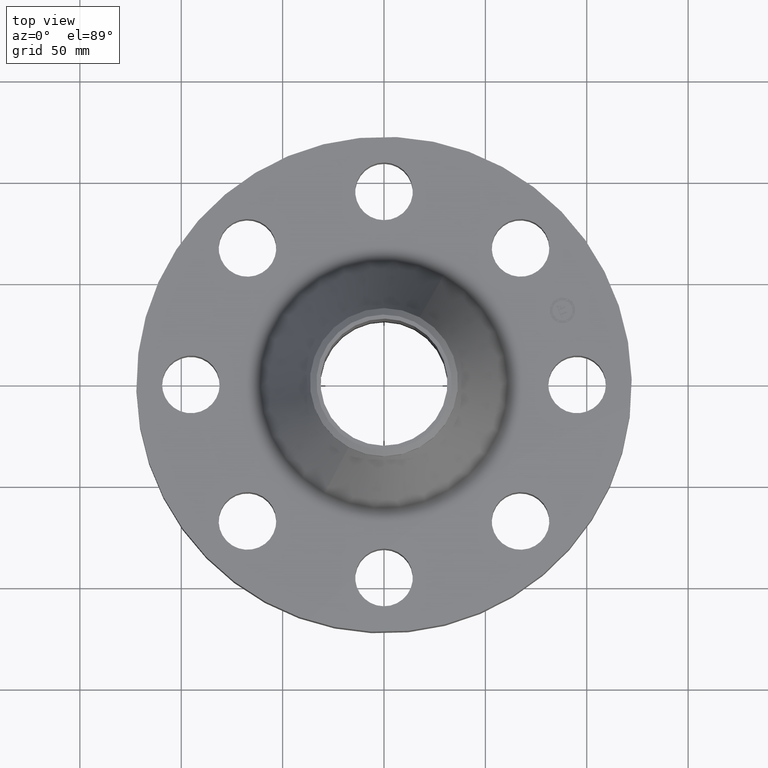
[diagram: clean part render]
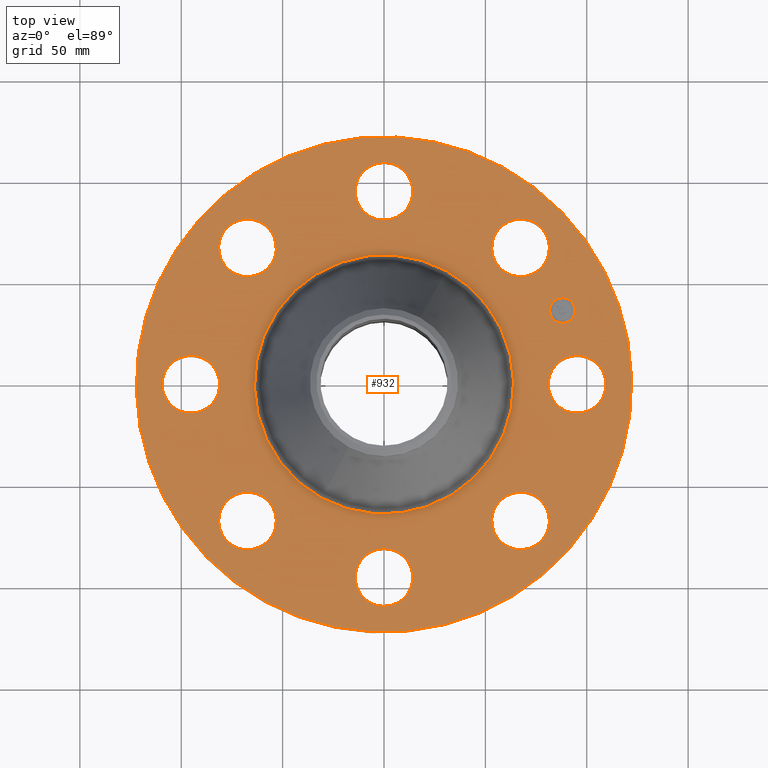
[diagram: same view with one face highlighted and labeled with its STEP entity id]
A machine part, top view. The second image highlights one B-rep face of the part: STEP entity #932.
In plain terms, the highlighted planar face has unit normal (0, 0, -1).
Its self-contained STEP definition (entity closure, byte-faithful):
#65=AXIS2_PLACEMENT_3D('Circle Axis2P3D',#63,#64,$) ;
#82=AXIS2_PLACEMENT_3D('Circle Axis2P3D',#80,#81,$) ;
#115=AXIS2_PLACEMENT_3D('Circle Axis2P3D',#113,#114,$) ;
#139=AXIS2_PLACEMENT_3D('Circle Axis2P3D',#137,#138,$) ;
#156=AXIS2_PLACEMENT_3D('Circle Axis2P3D',#154,#155,$) ;
#191=AXIS2_PLACEMENT_3D('Circle Axis2P3D',#189,#190,$) ;
#589=AXIS2_PLACEMENT_3D('Circle Axis2P3D',#587,#588,$) ;
#601=AXIS2_PLACEMENT_3D('Circle Axis2P3D',#599,#600,$) ;
#632=AXIS2_PLACEMENT_3D('Circle Axis2P3D',#630,#631,$) ;
#644=AXIS2_PLACEMENT_3D('Circle Axis2P3D',#642,#643,$) ;
#675=AXIS2_PLACEMENT_3D('Circle Axis2P3D',#673,#674,$) ;
#687=AXIS2_PLACEMENT_3D('Circle Axis2P3D',#685,#686,$) ;
#718=AXIS2_PLACEMENT_3D('Circle Axis2P3D',#716,#717,$) ;
#730=AXIS2_PLACEMENT_3D('Circle Axis2P3D',#728,#729,$) ;
#761=AXIS2_PLACEMENT_3D('Circle Axis2P3D',#759,#760,$) ;
#773=AXIS2_PLACEMENT_3D('Circle Axis2P3D',#771,#772,$) ;
#804=AXIS2_PLACEMENT_3D('Circle Axis2P3D',#802,#803,$) ;
#816=AXIS2_PLACEMENT_3D('Circle Axis2P3D',#814,#815,$) ;
#847=AXIS2_PLACEMENT_3D('Circle Axis2P3D',#845,#846,$) ;
#859=AXIS2_PLACEMENT_3D('Circle Axis2P3D',#857,#858,$) ;
#872=AXIS2_PLACEMENT_3D('Plane Axis2P3D',#869,#870,#871) ;
#916=AXIS2_PLACEMENT_3D('Circle Axis2P3D',#914,#915,$) ;
#925=AXIS2_PLACEMENT_3D('Circle Axis2P3D',#923,#924,$) ;
#46=CARTESIAN_POINT('Vertex',(3.25855376535,0.268478301619,1.62000000001)) ;
#60=CARTESIAN_POINT('Vertex',(4.24144623468,-0.268478301619,1.62000000001)) ;
#63=CARTESIAN_POINT('Axis2P3D Location',(3.75000000002,0.,1.62000000001)) ;
#80=CARTESIAN_POINT('Axis2P3D Location',(3.75000000002,0.,1.62000000001)) ;
#110=CARTESIAN_POINT('Vertex',(-2.3060368407,-4.22117212271,1.62000000001)) ;
#113=CARTESIAN_POINT('Axis2P3D Location',(0.,0.,1.62000000001)) ;
#117=CARTESIAN_POINT('Vertex',(2.3060368407,4.22117212271,1.62000000001)) ;
#137=CARTESIAN_POINT('Axis2P3D Location',(0.,0.,1.62000000001)) ;
#154=CARTESIAN_POINT('Axis2P3D Location',(0.,0.,1.62000000001)) ;
#158=CARTESIAN_POINT('Vertex',(1.20660746065,2.20868014165,1.62000000001)) ;
#160=CARTESIAN_POINT('Vertex',(-1.20660746065,-2.20868014165,1.62000000001)) ;
#189=CARTESIAN_POINT('Axis2P3D Location',(0.,0.,1.62000000001)) ;
#577=CARTESIAN_POINT('Vertex',(-2.49398829202,2.11430263667,1.62000000001)) ;
#584=CARTESIAN_POINT('Vertex',(-2.8093125669,3.18899822225,1.62000000001)) ;
#587=CARTESIAN_POINT('Axis2P3D Location',(-2.65165042946,2.65165042946,1.62000000001)) ;
#599=CARTESIAN_POINT('Axis2P3D Location',(-2.65165042946,2.65165042946,1.62000000001)) ;
#620=CARTESIAN_POINT('Vertex',(0.268478301619,-3.25855376535,1.62000000001)) ;
#627=CARTESIAN_POINT('Vertex',(-0.268478301619,-4.24144623468,1.62000000001)) ;
#630=CARTESIAN_POINT('Axis2P3D Location',(-3.29861194261E-016,-3.75000000002,1.62000000001)) ;
#642=CARTESIAN_POINT('Axis2P3D Location',(-3.29861194261E-016,-3.75000000002,1.62000000001)) ;
#663=CARTESIAN_POINT('Vertex',(-0.268478301619,3.25855376535,1.62000000001)) ;
#670=CARTESIAN_POINT('Vertex',(0.268478301619,4.24144623468,1.62000000001)) ;
#673=CARTESIAN_POINT('Axis2P3D Location',(-6.88863824523E-016,3.75000000002,1.62000000001)) ;
#685=CARTESIAN_POINT('Axis2P3D Location',(-6.88863824523E-016,3.75000000002,1.62000000001)) ;
#706=CARTESIAN_POINT('Vertex',(-2.11430263667,-2.49398829202,1.62000000001)) ;
#713=CARTESIAN_POINT('Vertex',(-3.18899822225,-2.8093125669,1.62000000001)) ;
#716=CARTESIAN_POINT('Axis2P3D Location',(-2.65165042946,-2.65165042946,1.62000000001)) ;
#728=CARTESIAN_POINT('Axis2P3D Location',(-2.65165042946,-2.65165042946,1.62000000001)) ;
#749=CARTESIAN_POINT('Vertex',(2.11430263667,2.49398829202,1.62000000001)) ;
#756=CARTESIAN_POINT('Vertex',(3.18899822225,2.8093125669,1.62000000001)) ;
#759=CARTESIAN_POINT('Axis2P3D Location',(2.65165042946,2.65165042946,1.62000000001)) ;
#771=CARTESIAN_POINT('Axis2P3D Location',(2.65165042946,2.65165042946,1.62000000001)) ;
#792=CARTESIAN_POINT('Vertex',(-3.25855376535,-0.268478301619,1.62000000001)) ;
#799=CARTESIAN_POINT('Vertex',(-4.24144623468,0.268478301619,1.62000000001)) ;
#802=CARTESIAN_POINT('Axis2P3D Location',(-3.75000000002,-4.59242549682E-016,1.62000000001)) ;
#814=CARTESIAN_POINT('Axis2P3D Location',(-3.75000000002,-4.59242549682E-016,1.62000000001)) ;
#835=CARTESIAN_POINT('Vertex',(2.49398829202,-2.11430263667,1.62000000001)) ;
#842=CARTESIAN_POINT('Vertex',(2.8093125669,-3.18899822225,1.62000000001)) ;
#845=CARTESIAN_POINT('Axis2P3D Location',(2.65165042946,-2.65165042946,1.62000000001)) ;
#857=CARTESIAN_POINT('Axis2P3D Location',(2.65165042946,-2.65165042946,1.62000000001)) ;
#869=CARTESIAN_POINT('Axis2P3D Location',(0.,4.81000000002,1.62000000001)) ;
#914=CARTESIAN_POINT('Axis2P3D Location',(3.46454824693,1.43506287137,1.62000000001)) ;
#918=CARTESIAN_POINT('Vertex',(3.36983409742,1.66372305567,1.62000000001)) ;
#920=CARTESIAN_POINT('Vertex',(3.55926239644,1.20640268708,1.62000000001)) ;
#923=CARTESIAN_POINT('Axis2P3D Location',(3.46454824693,1.43506287137,1.62000000001)) ;
#64=DIRECTION('Axis2P3D Direction',(0.,-0.,-0.0393700787402)) ;
#81=DIRECTION('Axis2P3D Direction',(0.,-0.,-0.0393700787402)) ;
#114=DIRECTION('Axis2P3D Direction',(0.,0.,-0.0393700787402)) ;
#138=DIRECTION('Axis2P3D Direction',(0.,0.,-0.0393700787402)) ;
#155=DIRECTION('Axis2P3D Direction',(0.,0.,-0.0393700787402)) ;
#190=DIRECTION('Axis2P3D Direction',(0.,0.,-0.0393700787402)) ;
#588=DIRECTION('Axis2P3D Direction',(0.,0.,-0.0393700787402)) ;
#600=DIRECTION('Axis2P3D Direction',(0.,0.,-0.0393700787402)) ;
#631=DIRECTION('Axis2P3D Direction',(0.,-0.,-0.0393700787402)) ;
#643=DIRECTION('Axis2P3D Direction',(0.,-0.,-0.0393700787402)) ;
#674=DIRECTION('Axis2P3D Direction',(0.,0.,-0.0393700787402)) ;
#686=DIRECTION('Axis2P3D Direction',(0.,0.,-0.0393700787402)) ;
#717=DIRECTION('Axis2P3D Direction',(-0.,0.,-0.0393700787402)) ;
#729=DIRECTION('Axis2P3D Direction',(-0.,0.,-0.0393700787402)) ;
#760=DIRECTION('Axis2P3D Direction',(0.,0.,-0.0393700787402)) ;
#772=DIRECTION('Axis2P3D Direction',(0.,0.,-0.0393700787402)) ;
#803=DIRECTION('Axis2P3D Direction',(-0.,0.,-0.0393700787402)) ;
#815=DIRECTION('Axis2P3D Direction',(-0.,0.,-0.0393700787402)) ;
#846=DIRECTION('Axis2P3D Direction',(0.,-0.,-0.0393700787402)) ;
#858=DIRECTION('Axis2P3D Direction',(0.,-0.,-0.0393700787402)) ;
#870=DIRECTION('Axis2P3D Direction',(0.,0.,-0.0393700787402)) ;
#871=DIRECTION('Axis2P3D XDirection',(0.0393700787402,0.,0.)) ;
#915=DIRECTION('Axis2P3D Direction',(0.,0.,-0.0393700787402)) ;
#924=DIRECTION('Axis2P3D Direction',(0.,0.,-0.0393700787402)) ;
#875=ORIENTED_EDGE('',*,*,#141,.F.) ;
#876=ORIENTED_EDGE('',*,*,#119,.F.) ;
#879=ORIENTED_EDGE('',*,*,#67,.T.) ;
#880=ORIENTED_EDGE('',*,*,#84,.T.) ;
#883=ORIENTED_EDGE('',*,*,#193,.T.) ;
#884=ORIENTED_EDGE('',*,*,#162,.T.) ;
#887=ORIENTED_EDGE('',*,*,#861,.T.) ;
#888=ORIENTED_EDGE('',*,*,#849,.T.) ;
#891=ORIENTED_EDGE('',*,*,#646,.T.) ;
#892=ORIENTED_EDGE('',*,*,#634,.T.) ;
#895=ORIENTED_EDGE('',*,*,#732,.T.) ;
#896=ORIENTED_EDGE('',*,*,#720,.T.) ;
#899=ORIENTED_EDGE('',*,*,#818,.T.) ;
#900=ORIENTED_EDGE('',*,*,#806,.T.) ;
#903=ORIENTED_EDGE('',*,*,#603,.T.) ;
#904=ORIENTED_EDGE('',*,*,#591,.T.) ;
#907=ORIENTED_EDGE('',*,*,#689,.T.) ;
#908=ORIENTED_EDGE('',*,*,#677,.T.) ;
#911=ORIENTED_EDGE('',*,*,#775,.T.) ;
#912=ORIENTED_EDGE('',*,*,#763,.T.) ;
#929=ORIENTED_EDGE('',*,*,#922,.T.) ;
#930=ORIENTED_EDGE('',*,*,#927,.T.) ;
#881=FACE_BOUND('',#878,.T.) ;
#885=FACE_BOUND('',#882,.T.) ;
#889=FACE_BOUND('',#886,.T.) ;
#893=FACE_BOUND('',#890,.T.) ;
#897=FACE_BOUND('',#894,.T.) ;
#901=FACE_BOUND('',#898,.T.) ;
#905=FACE_BOUND('',#902,.T.) ;
#909=FACE_BOUND('',#906,.T.) ;
#913=FACE_BOUND('',#910,.T.) ;
#931=FACE_BOUND('',#928,.T.) ;
#932=ADVANCED_FACE('PartBody',(#877,#881,#885,#889,#893,#897,#901,#905,#909,#913,#931),#873,.F.) ;
#66=CIRCLE('generated circle',#65,0.560000000002) ;
#83=CIRCLE('generated circle',#82,0.560000000002) ;
#116=CIRCLE('generated circle',#115,4.81000000002) ;
#140=CIRCLE('generated circle',#139,4.81000000002) ;
#157=CIRCLE('generated circle',#156,2.51677760882) ;
#192=CIRCLE('generated circle',#191,2.51677760882) ;
#590=CIRCLE('generated circle',#589,0.560000000002) ;
#602=CIRCLE('generated circle',#601,0.560000000002) ;
#633=CIRCLE('generated circle',#632,0.560000000002) ;
#645=CIRCLE('generated circle',#644,0.560000000002) ;
#676=CIRCLE('generated circle',#675,0.560000000002) ;
#688=CIRCLE('generated circle',#687,0.560000000002) ;
#719=CIRCLE('generated circle',#718,0.560000000002) ;
#731=CIRCLE('generated circle',#730,0.560000000002) ;
#762=CIRCLE('generated circle',#761,0.560000000002) ;
#774=CIRCLE('generated circle',#773,0.560000000002) ;
#805=CIRCLE('generated circle',#804,0.560000000002) ;
#817=CIRCLE('generated circle',#816,0.560000000002) ;
#848=CIRCLE('generated circle',#847,0.560000000002) ;
#860=CIRCLE('generated circle',#859,0.560000000002) ;
#917=CIRCLE('generated circle',#916,0.247500000001) ;
#926=CIRCLE('generated circle',#925,0.247500000001) ;
#67=EDGE_CURVE('',#47,#61,#66,.T.) ;
#84=EDGE_CURVE('',#61,#47,#83,.T.) ;
#119=EDGE_CURVE('',#111,#118,#116,.T.) ;
#141=EDGE_CURVE('',#118,#111,#140,.T.) ;
#162=EDGE_CURVE('',#159,#161,#157,.T.) ;
#193=EDGE_CURVE('',#161,#159,#192,.T.) ;
#591=EDGE_CURVE('',#578,#585,#590,.T.) ;
#603=EDGE_CURVE('',#585,#578,#602,.T.) ;
#634=EDGE_CURVE('',#621,#628,#633,.T.) ;
#646=EDGE_CURVE('',#628,#621,#645,.T.) ;
#677=EDGE_CURVE('',#664,#671,#676,.T.) ;
#689=EDGE_CURVE('',#671,#664,#688,.T.) ;
#720=EDGE_CURVE('',#707,#714,#719,.T.) ;
#732=EDGE_CURVE('',#714,#707,#731,.T.) ;
#763=EDGE_CURVE('',#750,#757,#762,.T.) ;
#775=EDGE_CURVE('',#757,#750,#774,.T.) ;
#806=EDGE_CURVE('',#793,#800,#805,.T.) ;
#818=EDGE_CURVE('',#800,#793,#817,.T.) ;
#849=EDGE_CURVE('',#836,#843,#848,.T.) ;
#861=EDGE_CURVE('',#843,#836,#860,.T.) ;
#922=EDGE_CURVE('',#919,#921,#917,.T.) ;
#927=EDGE_CURVE('',#921,#919,#926,.T.) ;
#874=EDGE_LOOP('',(#875,#876)) ;
#878=EDGE_LOOP('',(#879,#880)) ;
#882=EDGE_LOOP('',(#883,#884)) ;
#886=EDGE_LOOP('',(#887,#888)) ;
#890=EDGE_LOOP('',(#891,#892)) ;
#894=EDGE_LOOP('',(#895,#896)) ;
#898=EDGE_LOOP('',(#899,#900)) ;
#902=EDGE_LOOP('',(#903,#904)) ;
#906=EDGE_LOOP('',(#907,#908)) ;
#910=EDGE_LOOP('',(#911,#912)) ;
#928=EDGE_LOOP('',(#929,#930)) ;
#877=FACE_OUTER_BOUND('',#874,.T.) ;
#873=PLANE('',#872) ;
#47=VERTEX_POINT('',#46) ;
#61=VERTEX_POINT('',#60) ;
#111=VERTEX_POINT('',#110) ;
#118=VERTEX_POINT('',#117) ;
#159=VERTEX_POINT('',#158) ;
#161=VERTEX_POINT('',#160) ;
#578=VERTEX_POINT('',#577) ;
#585=VERTEX_POINT('',#584) ;
#621=VERTEX_POINT('',#620) ;
#628=VERTEX_POINT('',#627) ;
#664=VERTEX_POINT('',#663) ;
#671=VERTEX_POINT('',#670) ;
#707=VERTEX_POINT('',#706) ;
#714=VERTEX_POINT('',#713) ;
#750=VERTEX_POINT('',#749) ;
#757=VERTEX_POINT('',#756) ;
#793=VERTEX_POINT('',#792) ;
#800=VERTEX_POINT('',#799) ;
#836=VERTEX_POINT('',#835) ;
#843=VERTEX_POINT('',#842) ;
#919=VERTEX_POINT('',#918) ;
#921=VERTEX_POINT('',#920) ;